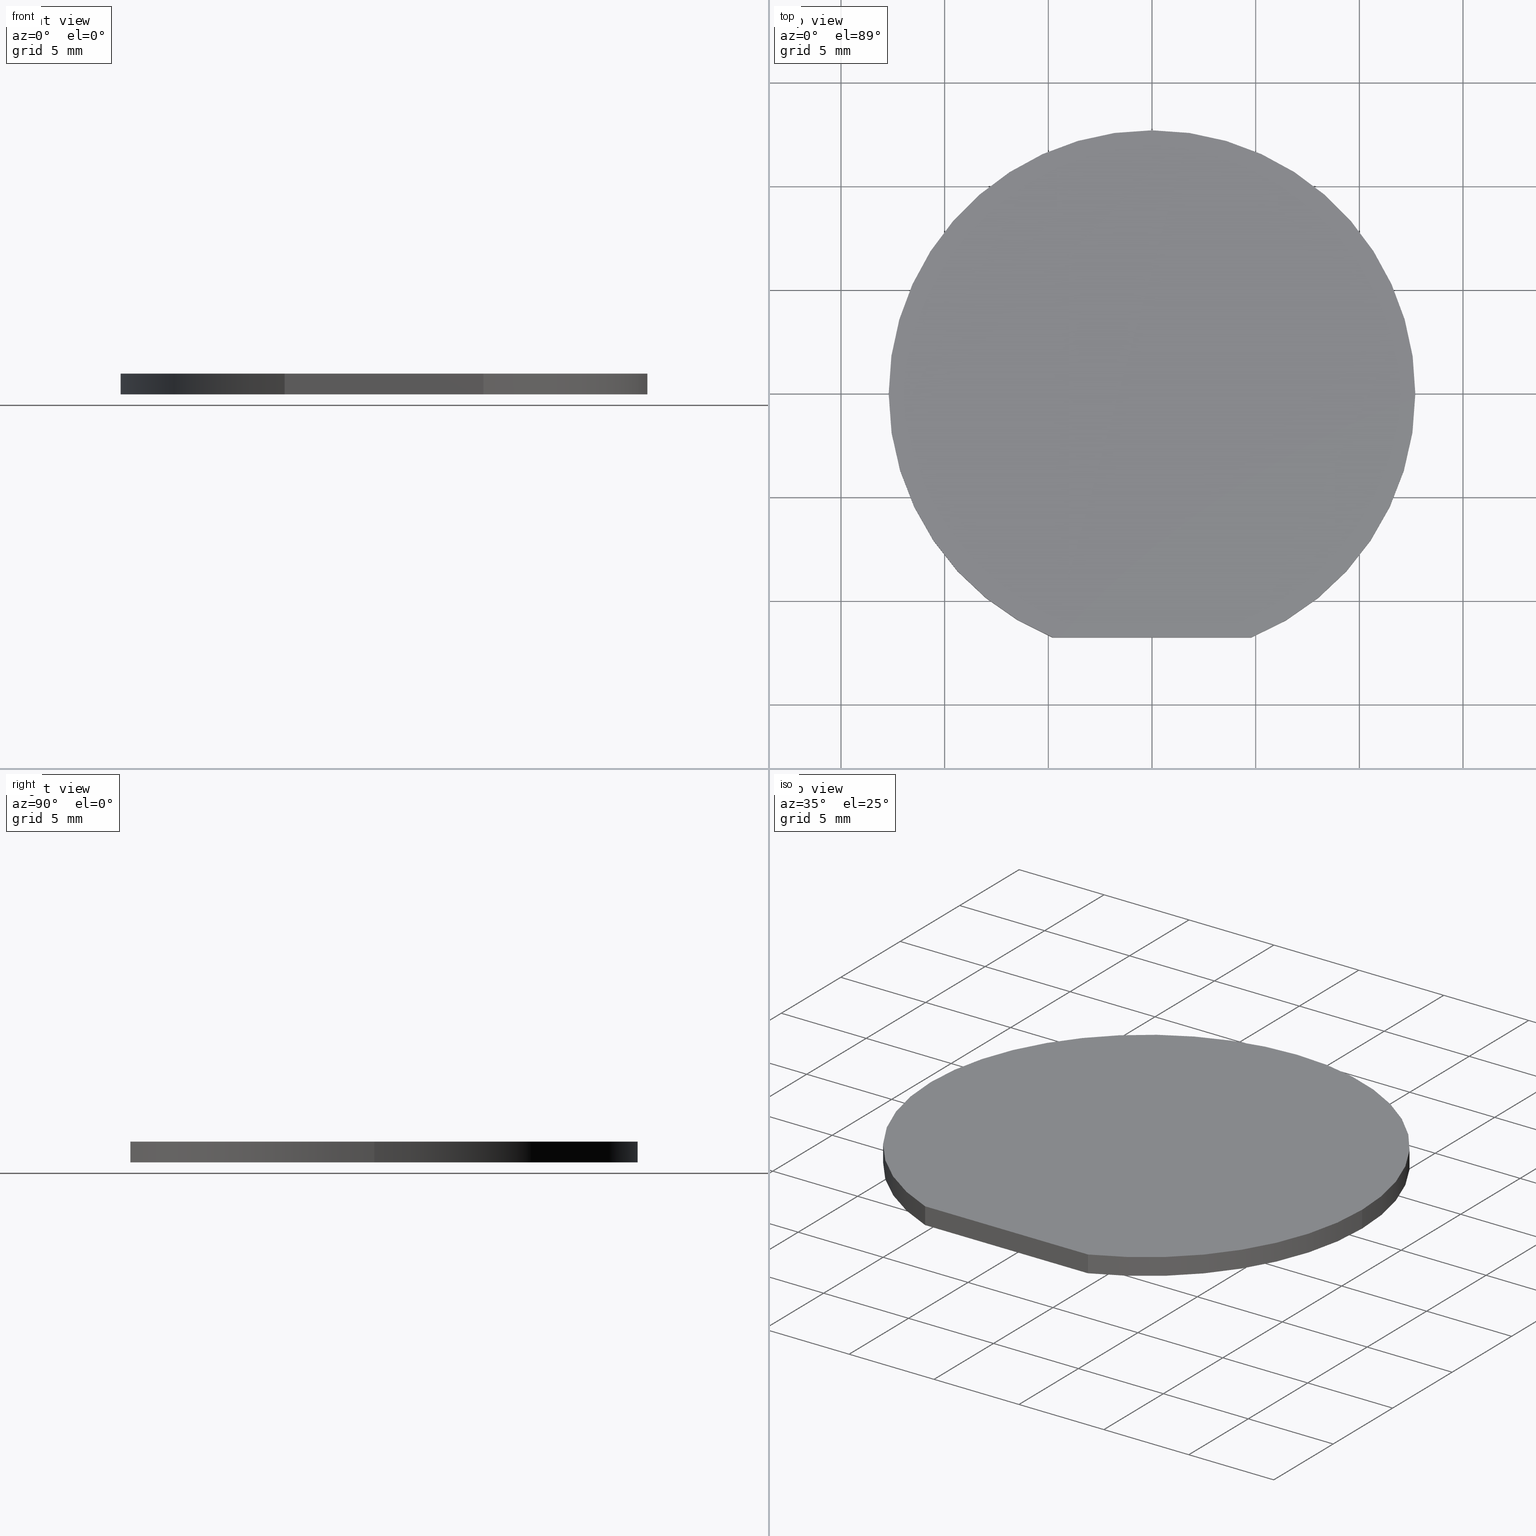
[diagram: canonical four-view strip — front | top / right | iso, engineering-drawing reading convention]
A machine part, canonical four-view strip (front | top / right | iso — engineering-drawing reading convention). The complete STEP part file that produces these views, byte-faithful:
ISO-10303-21;
HEADER;
FILE_DESCRIPTION (( 'STEP AP214' ),
    '1' );
FILE_NAME ('336001.STEP',
    '2020-09-24T08:20:07',
    ( '' ),
    ( '' ),
    'SwSTEP 2.0',
    'SolidWorks 2019',
    '' );
FILE_SCHEMA (( 'AUTOMOTIVE_DESIGN' ));
ENDSEC;

DATA;
#1 = VECTOR ( 'NONE', #26, 1000.000000000000000 ) ;
#2 = CARTESIAN_POINT ( 'NONE',  ( -5.887338073691013918, -11.75999999999999979, 0.0000000000000000000 ) ) ;
#3 = ORIENTED_EDGE ( 'NONE', *, *, #173, .T. ) ;
#4 = CARTESIAN_POINT ( 'NONE',  ( 0.0000000000000000000, 0.0000000000000000000, 0.0000000000000000000 ) ) ;
#5 = ORIENTED_EDGE ( 'NONE', *, *, #39, .F. ) ;
#6 = PRESENTATION_LAYER_ASSIGNMENT (  '', '', ( #138 ) ) ;
#7 = ADVANCED_FACE ( 'NONE', ( #195 ), #52, .F. ) ;
#8 = DIRECTION ( 'NONE',  ( 0.0000000000000000000, 0.0000000000000000000, 1.000000000000000000 ) ) ;
#9 = EDGE_LOOP ( 'NONE', ( #101, #24, #103, #53 ) ) ;
#10 = FACE_OUTER_BOUND ( 'NONE', #118, .T. ) ;
#11 = AXIS2_PLACEMENT_3D ( 'NONE', #4, #70, #193 ) ;
#12 = ORIENTED_EDGE ( 'NONE', *, *, #77, .T. ) ;
#13 = DIRECTION ( 'NONE',  ( 1.000000000000000000, 0.0000000000000000000, 0.0000000000000000000 ) ) ;
#14 = CARTESIAN_POINT ( 'NONE',  ( 0.0000000000000000000, 0.0000000000000000000, 0.0000000000000000000 ) ) ;
#15 = AXIS2_PLACEMENT_3D ( 'NONE', #189, #169, #157 ) ;
#16 = PRESENTATION_LAYER_ASSIGNMENT (  '', '', ( #170 ) ) ;
#17 = CARTESIAN_POINT ( 'NONE',  ( -4.795039103073091447, -11.75999999999999979, 1.000000000000000000 ) ) ;
#18 = ORIENTED_EDGE ( 'NONE', *, *, #39, .T. ) ;
#19 = CARTESIAN_POINT ( 'NONE',  ( -4.795039103073091447, -11.75999999999999979, 1.000000000000000000 ) ) ;
#20 = ORIENTED_EDGE ( 'NONE', *, *, #173, .F. ) ;
#21 = VECTOR ( 'NONE', #112, 1000.000000000000000 ) ;
#22 = CARTESIAN_POINT ( 'NONE',  ( 0.0000000000000000000, 0.0000000000000000000, 1.000000000000000000 ) ) ;
#23 = DIRECTION ( 'NONE',  ( 1.000000000000000000, 0.0000000000000000000, -0.0000000000000000000 ) ) ;
#24 = ORIENTED_EDGE ( 'NONE', *, *, #129, .F. ) ;
#25 = CIRCLE ( 'NONE', #11, 12.69999999999999929 ) ;
#26 = DIRECTION ( 'NONE',  ( -1.000000000000000000, -0.0000000000000000000, 0.0000000000000000000 ) ) ;
#27 = FILL_AREA_STYLE ('',( #186 ) ) ;
#28 = EDGE_CURVE ( 'NONE', #152, #185, #85, .T. ) ;
#29 = AXIS2_PLACEMENT_3D ( 'NONE', #114, #42, #23 ) ;
#30 = PRODUCT ( '336001', '336001', '', ( #90 ) ) ;
#31 = ORIENTED_EDGE ( 'NONE', *, *, #144, .F. ) ;
#32 = EDGE_CURVE ( 'NONE', #152, #71, #100, .T. ) ;
#33 =( GEOMETRIC_REPRESENTATION_CONTEXT ( 3 ) GLOBAL_UNCERTAINTY_ASSIGNED_CONTEXT ( ( #108 ) ) GLOBAL_UNIT_ASSIGNED_CONTEXT ( ( #111, #48, #191 ) ) REPRESENTATION_CONTEXT ( 'NONE', 'WORKASPACE' ) );
#34 = CARTESIAN_POINT ( 'NONE',  ( 4.795039103073092335, -11.75999999999999979, 0.0000000000000000000 ) ) ;
#35 = PRODUCT_DEFINITION_CONTEXT ( 'detailed design', #174, 'design' ) ;
#36 = CARTESIAN_POINT ( 'NONE',  ( -12.69999999999999929, 0.0000000000000000000, 0.0000000000000000000 ) ) ;
#37 = ORIENTED_EDGE ( 'NONE', *, *, #144, .T. ) ;
#38 = ORIENTED_EDGE ( 'NONE', *, *, #77, .F. ) ;
#39 = EDGE_CURVE ( 'NONE', #71, #168, #190, .T. ) ;
#40 = CYLINDRICAL_SURFACE ( 'NONE', #110, 12.69999999999999929 ) ;
#41 = VECTOR ( 'NONE', #121, 1000.000000000000000 ) ;
#42 = DIRECTION ( 'NONE',  ( 0.0000000000000000000, 0.0000000000000000000, 1.000000000000000000 ) ) ;
#43 = ORIENTED_EDGE ( 'NONE', *, *, #207, .F. ) ;
#44 = FACE_OUTER_BOUND ( 'NONE', #69, .T. ) ;
#45 = APPLICATION_PROTOCOL_DEFINITION ( 'draft international standard', 'automotive_design', 1998, #65 ) ;
#46 = LINE ( 'NONE', #107, #1 ) ;
#47 = CARTESIAN_POINT ( 'NONE',  ( 0.0000000000000000000, 0.0000000000000000000, 0.0000000000000000000 ) ) ;
#48 =( NAMED_UNIT ( * ) PLANE_ANGLE_UNIT ( ) SI_UNIT ( $, .RADIAN. ) );
#49 = UNCERTAINTY_MEASURE_WITH_UNIT (LENGTH_MEASURE( 1.000000000000000082E-05 ), #146, 'distance_accuracy_value', 'NONE');
#50 = PLANE ( 'NONE',  #79 ) ;
#51 = CARTESIAN_POINT ( 'NONE',  ( -12.69999999999999929, 0.0000000000000000000, 1.000000000000000000 ) ) ;
#52 = PLANE ( 'NONE',  #29 ) ;
#53 = ORIENTED_EDGE ( 'NONE', *, *, #183, .F. ) ;
#54 = ADVANCED_BREP_SHAPE_REPRESENTATION ( '336001', ( #109, #80 ), #128 ) ;
#55 = AXIS2_PLACEMENT_3D ( 'NONE', #73, #136, #120 ) ;
#56 = CARTESIAN_POINT ( 'NONE',  ( -5.887338073691013918, -11.75999999999999979, 1.000000000000000000 ) ) ;
#57 = ADVANCED_FACE ( 'NONE', ( #10 ), #137, .T. ) ;
#58 = ORIENTED_EDGE ( 'NONE', *, *, #32, .F. ) ;
#59 = DIRECTION ( 'NONE',  ( 0.0000000000000000000, 0.0000000000000000000, 1.000000000000000000 ) ) ;
#60 = CARTESIAN_POINT ( 'NONE',  ( 0.0000000000000000000, 0.0000000000000000000, 1.000000000000000000 ) ) ;
#61 = DIRECTION ( 'NONE',  ( 0.0000000000000000000, 0.0000000000000000000, 1.000000000000000000 ) ) ;
#62 = CIRCLE ( 'NONE', #15, 12.69999999999999929 ) ;
#63 = PRODUCT_DEFINITION_SHAPE ( 'NONE', 'NONE',  #161 ) ;
#64 = COLOUR_RGB ( '',1.000000000000000000, 1.000000000000000000, 1.000000000000000000 ) ;
#65 = APPLICATION_CONTEXT ( 'automotive_design' ) ;
#66 = ADVANCED_FACE ( 'NONE', ( #182 ), #40, .T. ) ;
#67 = AXIS2_PLACEMENT_3D ( 'NONE', #2, #148, #131 ) ;
#68 = PLANE ( 'NONE',  #67 ) ;
#69 = EDGE_LOOP ( 'NONE', ( #5, #12, #205, #20 ) ) ;
#70 = DIRECTION ( 'NONE',  ( 0.0000000000000000000, 0.0000000000000000000, 1.000000000000000000 ) ) ;
#71 = VERTEX_POINT ( 'NONE', #201 ) ;
#72 = CARTESIAN_POINT ( 'NONE',  ( 0.0000000000000000000, 0.0000000000000000000, 1.000000000000000000 ) ) ;
#73 = CARTESIAN_POINT ( 'NONE',  ( 0.0000000000000000000, 0.0000000000000000000, 1.000000000000000000 ) ) ;
#74 = SURFACE_STYLE_FILL_AREA ( #27 ) ;
#75 = CARTESIAN_POINT ( 'NONE',  ( 0.0000000000000000000, 0.0000000000000000000, 0.0000000000000000000 ) ) ;
#76 = SURFACE_SIDE_STYLE ('',( #91 ) ) ;
#77 = EDGE_CURVE ( 'NONE', #71, #179, #119, .T. ) ;
#78 =( NAMED_UNIT ( * ) PLANE_ANGLE_UNIT ( ) SI_UNIT ( $, .RADIAN. ) );
#79 = AXIS2_PLACEMENT_3D ( 'NONE', #96, #113, #197 ) ;
#80 = AXIS2_PLACEMENT_3D ( 'NONE', #47, #187, #13 ) ;
#81 = ORIENTED_EDGE ( 'NONE', *, *, #32, .T. ) ;
#82 = FACE_OUTER_BOUND ( 'NONE', #9, .T. ) ;
#83 = ORIENTED_EDGE ( 'NONE', *, *, #183, .T. ) ;
#84 = CARTESIAN_POINT ( 'NONE',  ( -4.795039103073091447, -11.75999999999999979, 0.0000000000000000000 ) ) ;
#85 = LINE ( 'NONE', #56, #200 ) ;
#86 = CYLINDRICAL_SURFACE ( 'NONE', #87, 12.69999999999999929 ) ;
#87 = AXIS2_PLACEMENT_3D ( 'NONE', #60, #171, #204 ) ;
#88 = DIRECTION ( 'NONE',  ( 0.0000000000000000000, 0.0000000000000000000, 1.000000000000000000 ) ) ;
#89 =( NAMED_UNIT ( * ) PLANE_ANGLE_UNIT ( ) SI_UNIT ( $, .RADIAN. ) );
#90 = PRODUCT_CONTEXT ( 'NONE', #65, 'mechanical' ) ;
#91 = SURFACE_STYLE_FILL_AREA ( #172 ) ;
#92 = LINE ( 'NONE', #17, #41 ) ;
#93 = EDGE_LOOP ( 'NONE', ( #43, #147, #31, #115 ) ) ;
#94 = AXIS2_PLACEMENT_3D ( 'NONE', #117, #8, #153 ) ;
#95 = LINE ( 'NONE', #163, #175 ) ;
#96 = CARTESIAN_POINT ( 'NONE',  ( 0.0000000000000000000, 0.0000000000000000000, 1.000000000000000000 ) ) ;
#97 = VERTEX_POINT ( 'NONE', #84 ) ;
#98 = AXIS2_PLACEMENT_3D ( 'NONE', #14, #61, #125 ) ;
#99 = DIRECTION ( 'NONE',  ( -0.0000000000000000000, -0.0000000000000000000, -1.000000000000000000 ) ) ;
#100 = CIRCLE ( 'NONE', #202, 12.69999999999999929 ) ;
#101 = ORIENTED_EDGE ( 'NONE', *, *, #28, .T. ) ;
#102 = DIRECTION ( 'NONE',  ( 1.000000000000000000, 0.0000000000000000000, 0.0000000000000000000 ) ) ;
#103 = ORIENTED_EDGE ( 'NONE', *, *, #139, .F. ) ;
#104 = SURFACE_STYLE_USAGE ( .BOTH. , #140 ) ;
#105 = APPLICATION_PROTOCOL_DEFINITION ( 'draft international standard', 'automotive_design', 1998, #174 ) ;
#106 = ADVANCED_FACE ( 'NONE', ( #44 ), #86, .T. ) ;
#107 = CARTESIAN_POINT ( 'NONE',  ( 0.0000000000000000000, -11.75999999999999979, 0.0000000000000000000 ) ) ;
#108 = UNCERTAINTY_MEASURE_WITH_UNIT (LENGTH_MEASURE( 1.000000000000000082E-05 ), #111, 'distance_accuracy_value', 'NONE');
#109 = MANIFOLD_SOLID_BREP ( '�г�-����1', #180 ) ;
#110 = AXIS2_PLACEMENT_3D ( 'NONE', #72, #99, #166 ) ;
#111 =( LENGTH_UNIT ( ) NAMED_UNIT ( * ) SI_UNIT ( .MILLI., .METRE. ) );
#112 = DIRECTION ( 'NONE',  ( -0.0000000000000000000, -0.0000000000000000000, -1.000000000000000000 ) ) ;
#113 = DIRECTION ( 'NONE',  ( 0.0000000000000000000, 0.0000000000000000000, 1.000000000000000000 ) ) ;
#114 = CARTESIAN_POINT ( 'NONE',  ( 0.0000000000000000000, 0.0000000000000000000, 0.0000000000000000000 ) ) ;
#115 = ORIENTED_EDGE ( 'NONE', *, *, #150, .F. ) ;
#116 = AXIS2_PLACEMENT_3D ( 'NONE', #75, #88, #206 ) ;
#117 = CARTESIAN_POINT ( 'NONE',  ( 0.0000000000000000000, 0.0000000000000000000, 1.000000000000000000 ) ) ;
#118 = EDGE_LOOP ( 'NONE', ( #122, #3, #37, #198 ) ) ;
#119 = LINE ( 'NONE', #184, #155 ) ;
#120 = DIRECTION ( 'NONE',  ( -1.000000000000000000, 0.0000000000000000000, 0.0000000000000000000 ) ) ;
#121 = DIRECTION ( 'NONE',  ( 0.0000000000000000000, 0.0000000000000000000, 1.000000000000000000 ) ) ;
#122 = ORIENTED_EDGE ( 'NONE', *, *, #135, .F. ) ;
#123 = PRODUCT_RELATED_PRODUCT_CATEGORY ( 'part', '', ( #30 ) ) ;
#124 =( NAMED_UNIT ( * ) SI_UNIT ( $, .STERADIAN. ) SOLID_ANGLE_UNIT ( ) );
#125 = DIRECTION ( 'NONE',  ( 1.000000000000000000, 0.0000000000000000000, 0.0000000000000000000 ) ) ;
#126 = MECHANICAL_DESIGN_GEOMETRIC_PRESENTATION_REPRESENTATION (  '', ( #138 ), #33 ) ;
#127 = MECHANICAL_DESIGN_GEOMETRIC_PRESENTATION_REPRESENTATION (  '', ( #170 ), #145 ) ;
#128 =( GEOMETRIC_REPRESENTATION_CONTEXT ( 3 ) GLOBAL_UNCERTAINTY_ASSIGNED_CONTEXT ( ( #49 ) ) GLOBAL_UNIT_ASSIGNED_CONTEXT ( ( #146, #89, #124 ) ) REPRESENTATION_CONTEXT ( 'NONE', 'WORKASPACE' ) );
#129 = EDGE_CURVE ( 'NONE', #97, #185, #92, .T. ) ;
#130 = CIRCLE ( 'NONE', #98, 12.69999999999999929 ) ;
#131 = DIRECTION ( 'NONE',  ( 0.0000000000000000000, -0.0000000000000000000, 1.000000000000000000 ) ) ;
#132 = EDGE_LOOP ( 'NONE', ( #181, #81, #18, #149 ) ) ;
#133 = CARTESIAN_POINT ( 'NONE',  ( 4.795039103073091447, -11.75999999999999979, 1.000000000000000000 ) ) ;
#134 = ORIENTED_EDGE ( 'NONE', *, *, #207, .T. ) ;
#135 = EDGE_CURVE ( 'NONE', #168, #185, #62, .T. ) ;
#136 = DIRECTION ( 'NONE',  ( -0.0000000000000000000, -0.0000000000000000000, -1.000000000000000000 ) ) ;
#137 = CYLINDRICAL_SURFACE ( 'NONE', #55, 12.69999999999999929 ) ;
#138 = STYLED_ITEM ( 'NONE', ( #154 ), #109 ) ;
#139 = EDGE_CURVE ( 'NONE', #160, #97, #46, .T. ) ;
#140 = SURFACE_SIDE_STYLE ('',( #74 ) ) ;
#141 =( NAMED_UNIT ( * ) SI_UNIT ( $, .STERADIAN. ) SOLID_ANGLE_UNIT ( ) );
#142 = CARTESIAN_POINT ( 'NONE',  ( 4.795039103073092335, -11.75999999999999979, 1.000000000000000000 ) ) ;
#143 = SURFACE_STYLE_USAGE ( .BOTH. , #76 ) ;
#144 = EDGE_CURVE ( 'NONE', #203, #97, #159, .T. ) ;
#145 =( GEOMETRIC_REPRESENTATION_CONTEXT ( 3 ) GLOBAL_UNCERTAINTY_ASSIGNED_CONTEXT ( ( #192 ) ) GLOBAL_UNIT_ASSIGNED_CONTEXT ( ( #158, #78, #141 ) ) REPRESENTATION_CONTEXT ( 'NONE', 'WORKASPACE' ) );
#146 =( LENGTH_UNIT ( ) NAMED_UNIT ( * ) SI_UNIT ( .MILLI., .METRE. ) );
#147 = ORIENTED_EDGE ( 'NONE', *, *, #139, .T. ) ;
#148 = DIRECTION ( 'NONE',  ( -0.0000000000000000000, 1.000000000000000000, 0.0000000000000000000 ) ) ;
#149 = ORIENTED_EDGE ( 'NONE', *, *, #135, .T. ) ;
#150 = EDGE_CURVE ( 'NONE', #179, #203, #130, .T. ) ;
#151 = DIRECTION ( 'NONE',  ( -0.0000000000000000000, -0.0000000000000000000, -1.000000000000000000 ) ) ;
#152 = VERTEX_POINT ( 'NONE', #142 ) ;
#153 = DIRECTION ( 'NONE',  ( 1.000000000000000000, 0.0000000000000000000, 0.0000000000000000000 ) ) ;
#154 = PRESENTATION_STYLE_ASSIGNMENT (( #104 ) ) ;
#155 = VECTOR ( 'NONE', #151, 1000.000000000000000 ) ;
#156 = SHAPE_DEFINITION_REPRESENTATION ( #63, #54 ) ;
#157 = DIRECTION ( 'NONE',  ( 1.000000000000000000, 0.0000000000000000000, 0.0000000000000000000 ) ) ;
#158 =( LENGTH_UNIT ( ) NAMED_UNIT ( * ) SI_UNIT ( .MILLI., .METRE. ) );
#159 = CIRCLE ( 'NONE', #116, 12.69999999999999929 ) ;
#160 = VERTEX_POINT ( 'NONE', #34 ) ;
#161 = PRODUCT_DEFINITION ( 'δ֪', '', #196, #35 ) ;
#162 = FACE_OUTER_BOUND ( 'NONE', #132, .T. ) ;
#163 = CARTESIAN_POINT ( 'NONE',  ( -12.69999999999999929, 0.0000000000000000000, 1.000000000000000000 ) ) ;
#164 = EDGE_LOOP ( 'NONE', ( #38, #58, #83, #134 ) ) ;
#165 = COLOUR_RGB ( '',1.000000000000000000, 1.000000000000000000, 1.000000000000000000 ) ;
#166 = DIRECTION ( 'NONE',  ( -1.000000000000000000, 0.0000000000000000000, 0.0000000000000000000 ) ) ;
#167 = DIRECTION ( 'NONE',  ( -1.000000000000000000, -0.0000000000000000000, -0.0000000000000000000 ) ) ;
#168 = VERTEX_POINT ( 'NONE', #51 ) ;
#169 = DIRECTION ( 'NONE',  ( 0.0000000000000000000, 0.0000000000000000000, 1.000000000000000000 ) ) ;
#170 = STYLED_ITEM ( 'NONE', ( #208 ), #54 ) ;
#171 = DIRECTION ( 'NONE',  ( -0.0000000000000000000, -0.0000000000000000000, -1.000000000000000000 ) ) ;
#172 = FILL_AREA_STYLE ('',( #188 ) ) ;
#173 = EDGE_CURVE ( 'NONE', #168, #203, #95, .T. ) ;
#174 = APPLICATION_CONTEXT ( 'automotive_design' ) ;
#175 = VECTOR ( 'NONE', #177, 1000.000000000000000 ) ;
#176 = ADVANCED_FACE ( 'NONE', ( #162 ), #50, .T. ) ;
#177 = DIRECTION ( 'NONE',  ( -0.0000000000000000000, -0.0000000000000000000, -1.000000000000000000 ) ) ;
#178 = LINE ( 'NONE', #133, #21 ) ;
#179 = VERTEX_POINT ( 'NONE', #194 ) ;
#180 = CLOSED_SHELL ( 'NONE', ( #106, #57, #66, #176, #7, #199 ) ) ;
#181 = ORIENTED_EDGE ( 'NONE', *, *, #28, .F. ) ;
#182 = FACE_OUTER_BOUND ( 'NONE', #164, .T. ) ;
#183 = EDGE_CURVE ( 'NONE', #152, #160, #178, .T. ) ;
#184 = CARTESIAN_POINT ( 'NONE',  ( 12.69999999999999929, 1.555301434917138433E-15, 1.000000000000000000 ) ) ;
#185 = VERTEX_POINT ( 'NONE', #19 ) ;
#186 = FILL_AREA_STYLE_COLOUR ( '', #165 ) ;
#187 = DIRECTION ( 'NONE',  ( 0.0000000000000000000, 0.0000000000000000000, 1.000000000000000000 ) ) ;
#188 = FILL_AREA_STYLE_COLOUR ( '', #64 ) ;
#189 = CARTESIAN_POINT ( 'NONE',  ( 0.0000000000000000000, 0.0000000000000000000, 1.000000000000000000 ) ) ;
#190 = CIRCLE ( 'NONE', #94, 12.69999999999999929 ) ;
#191 =( NAMED_UNIT ( * ) SI_UNIT ( $, .STERADIAN. ) SOLID_ANGLE_UNIT ( ) );
#192 = UNCERTAINTY_MEASURE_WITH_UNIT (LENGTH_MEASURE( 1.000000000000000082E-05 ), #158, 'distance_accuracy_value', 'NONE');
#193 = DIRECTION ( 'NONE',  ( 1.000000000000000000, 0.0000000000000000000, 0.0000000000000000000 ) ) ;
#194 = CARTESIAN_POINT ( 'NONE',  ( 12.69999999999999929, 1.555301434917138433E-15, 0.0000000000000000000 ) ) ;
#195 = FACE_OUTER_BOUND ( 'NONE', #93, .T. ) ;
#196 = PRODUCT_DEFINITION_FORMATION_WITH_SPECIFIED_SOURCE ( '�κ�', '', #30, .NOT_KNOWN. ) ;
#197 = DIRECTION ( 'NONE',  ( 1.000000000000000000, 0.0000000000000000000, -0.0000000000000000000 ) ) ;
#198 = ORIENTED_EDGE ( 'NONE', *, *, #129, .T. ) ;
#199 = ADVANCED_FACE ( 'NONE', ( #82 ), #68, .F. ) ;
#200 = VECTOR ( 'NONE', #167, 1000.000000000000000 ) ;
#201 = CARTESIAN_POINT ( 'NONE',  ( 12.69999999999999929, 1.555301434917138433E-15, 1.000000000000000000 ) ) ;
#202 = AXIS2_PLACEMENT_3D ( 'NONE', #22, #59, #102 ) ;
#203 = VERTEX_POINT ( 'NONE', #36 ) ;
#204 = DIRECTION ( 'NONE',  ( -1.000000000000000000, 0.0000000000000000000, 0.0000000000000000000 ) ) ;
#205 = ORIENTED_EDGE ( 'NONE', *, *, #150, .T. ) ;
#206 = DIRECTION ( 'NONE',  ( 1.000000000000000000, 0.0000000000000000000, 0.0000000000000000000 ) ) ;
#207 = EDGE_CURVE ( 'NONE', #160, #179, #25, .T. ) ;
#208 = PRESENTATION_STYLE_ASSIGNMENT (( #143 ) ) ;
ENDSEC;
END-ISO-10303-21;
